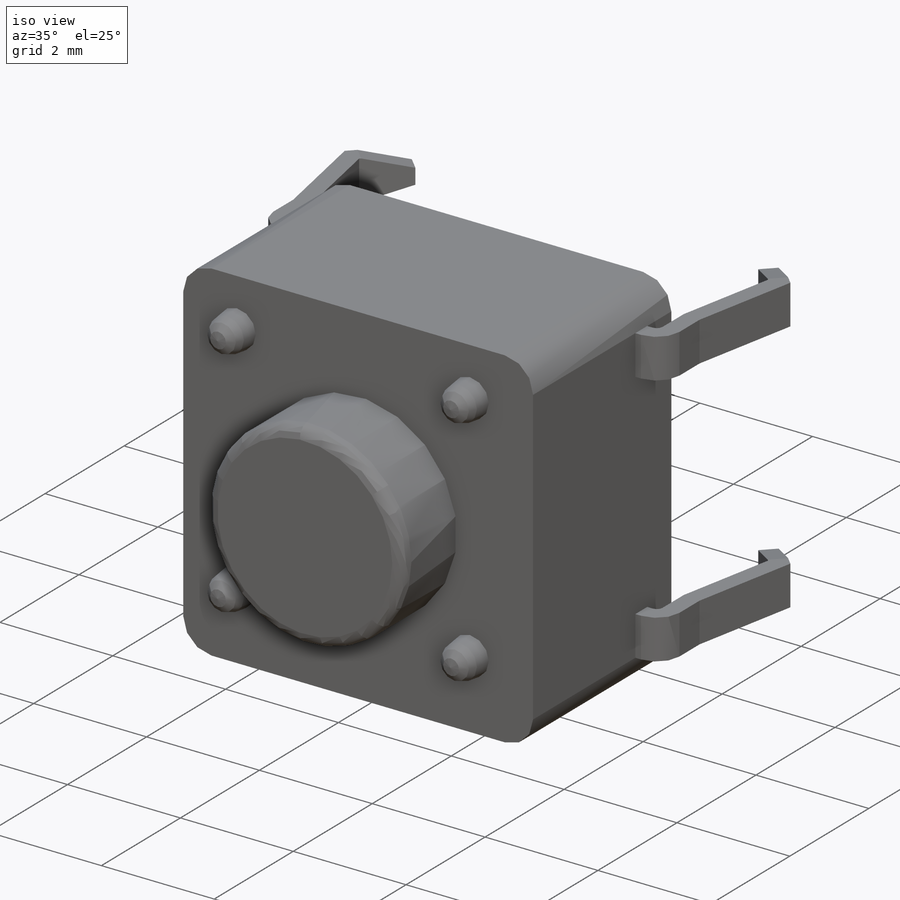
[diagram: iso view]
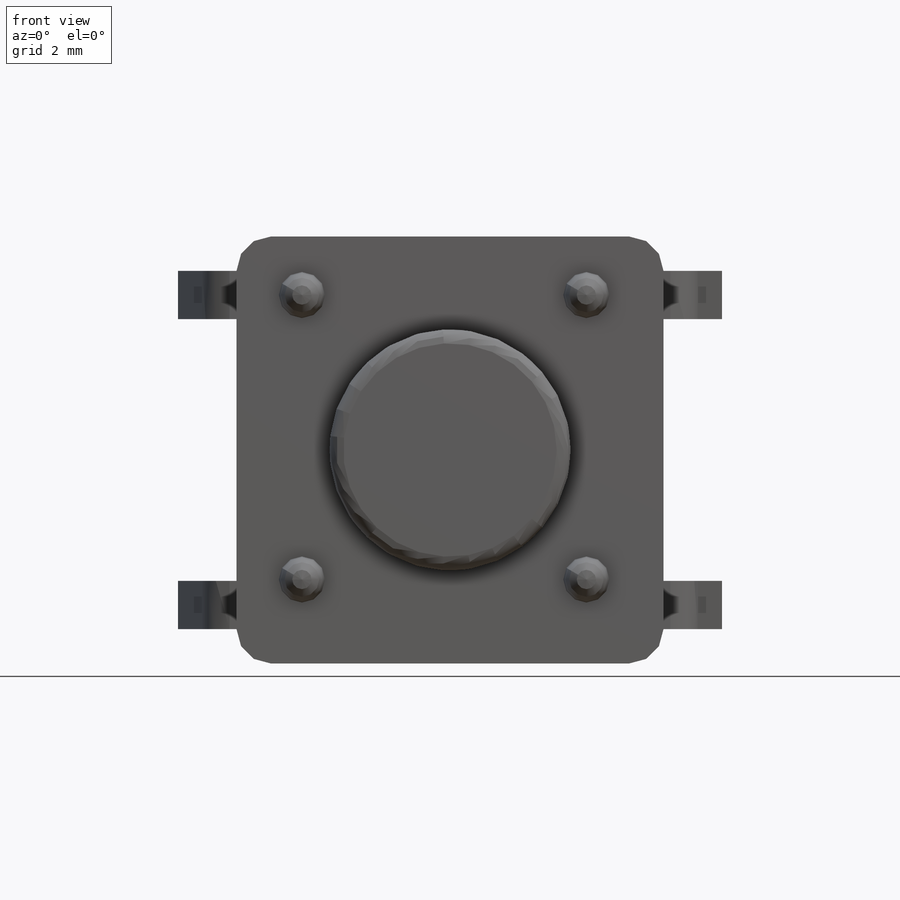
[diagram: front view]
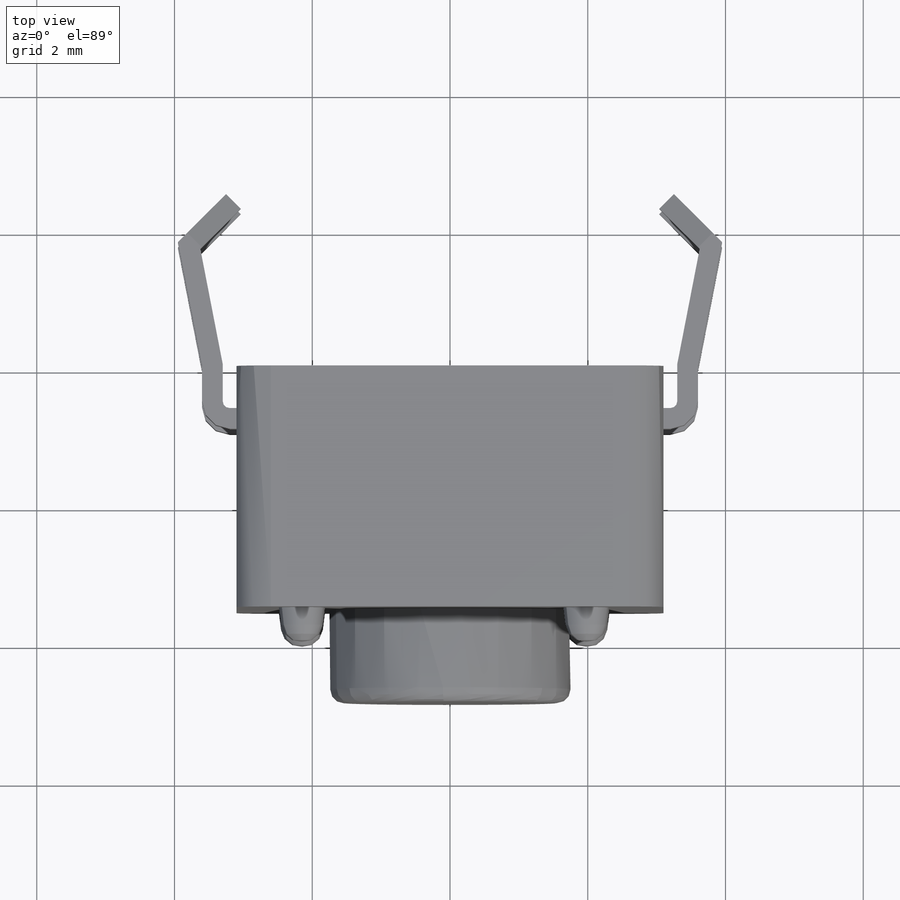
[diagram: top view]
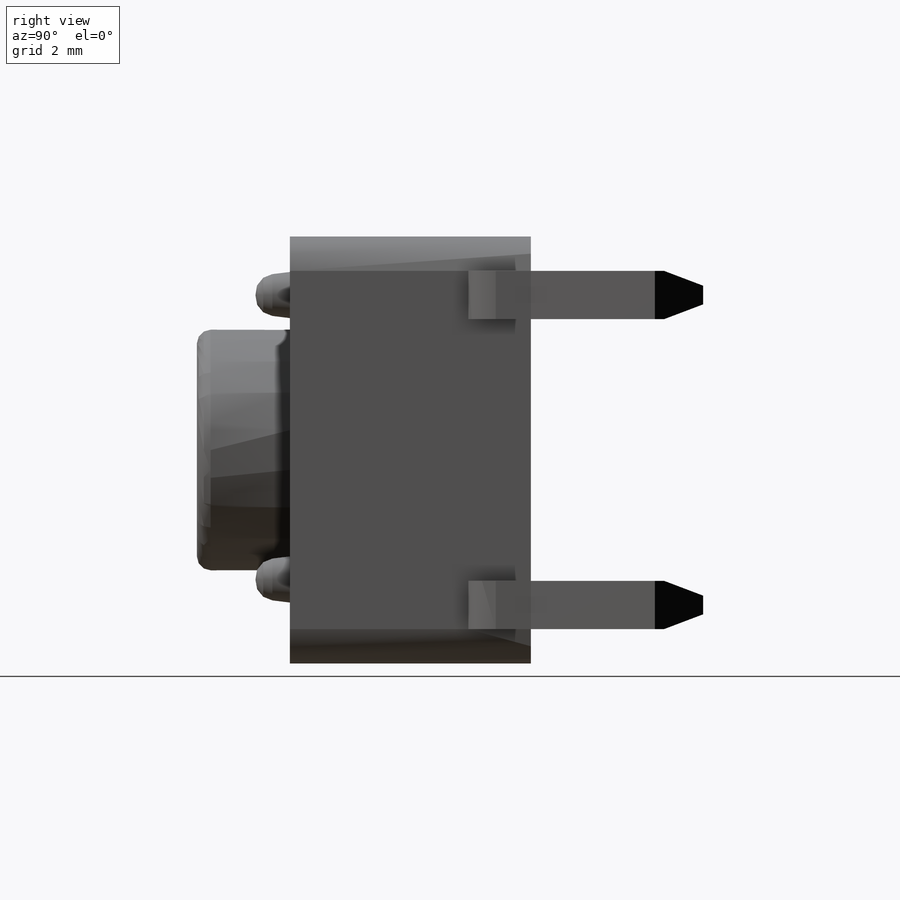
[diagram: right view]
SOLIDWORKS PART (.sldprt)
format: sldprt  version: not decoded by parser v0  size: 340,480 bytes
history: native  units: mm
features: sketch x4, extrude x3, fillet x2, mirror x2, material x1, plane x1, revolve x1, pattern_linear x1, chamfer x1 (+11 scaffold rows collapsed)
feature tree (27):
  scaffold x11  (default folders/planes/origin — collapsed)
  material  "Material <not specified>"
  sketch  "Sketch1"  dims[D1=6.2mm D2=3.1mm D3=6.2mm D4=3.1mm]
  extrude  "Extrude1"  Depth=3.5mm
  sketch  "Sketch2"  dims[D1=3.5mm]
  extrude  "Extrude2"  Depth=1.35mm
  plane  "Plane1"  Offset=2.25mm
  sketch  "Sketch4"  dims[c1.D4=~0.286678mm c1.D1=~0.607509mm c2.D1=10.0deg c3.D1=~0.776193mm c4.D1=7.0deg c4.D2=0.5mm c4.D3=2.15mm]
  revolve  "Revolve1"  Angle=360deg
  pattern_linear  "LPattern1"  Count1=2 Count2=2 Spacing1=4.13mm Spacing2=4.13mm
  fillet  "Fillet1"  Radius=0.5mm
  fillet  "Fillet2"  Radius=0.2mm
  sketch  "Sketch5"  dims[D5=0.4mm D6=0.1mm D2=3.25mm D3=3.95mm D4=2.5mm D7=1.8mm D8=3.6mm D1=0.3mm]
  extrude  "Extrude3"  Depth=0.7mm
  chamfer  "Chamfer1"  Distance=0.8mm Angle=15deg
  mirror  "Mirror1"
  mirror  "Mirror2"
decode coverage: 12 of 14 modeling features carry decoded parameters
note: ~ marks probable driven/reference dimensions
note: suppression state not decoded; provenance and decode notes live in map.json
